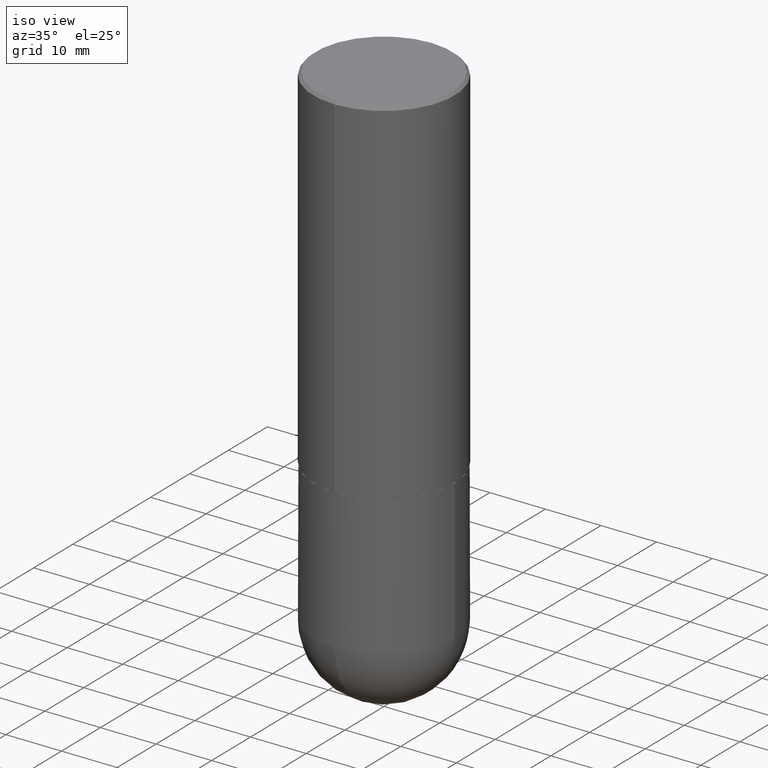
[diagram: clean part render]
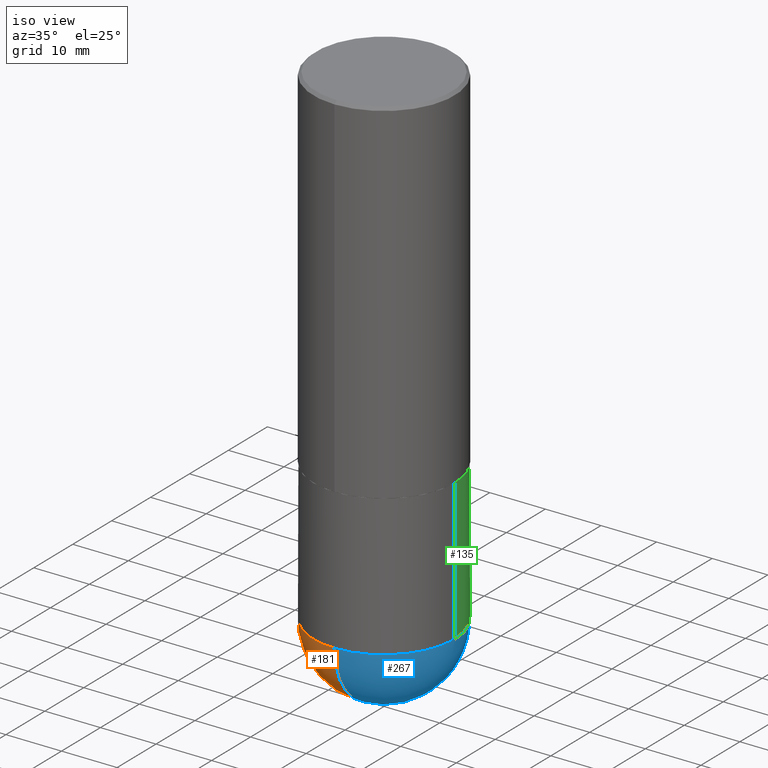
[diagram: same view with three faces highlighted in distinct colors, each labeled with its STEP entity id]
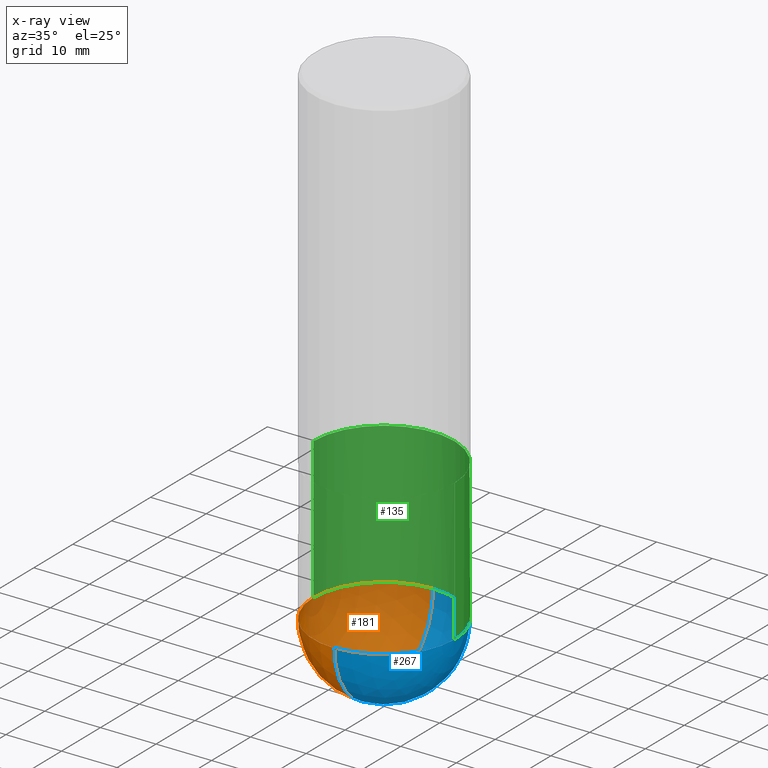
[diagram: x-ray of the same camera — body ghosted, the three highlighted faces saturated]
A machine part, iso view with three faces highlighted in distinct colors.
The next image is the same camera in x-ray (body ghosted, the three faces saturated) — at least one of them is partly hidden behind the body in this view.
Their STEP definitions:

[orange] entity #181 — the highlighted spherical surface has radius 12.7 mm.
#1 = EDGE_CURVE ( 'NONE', #18, #377, #163, .T. ) ;
#5 = DIRECTION ( 'NONE',  ( 1.000000000000000000, -6.982962677686266711E-15, 0.000000000000000000 ) ) ;
#8 = CARTESIAN_POINT ( 'NONE',  ( 8.228021043734090721E-29, -1.269436705409105806E-14, -3.500000000000000000 ) ) ;
#9 = DIRECTION ( 'NONE',  ( -1.000000000000000000, 7.105427357601001070E-15, -4.926315508542082329E-29 ) ) ;
#18 = VERTEX_POINT ( 'NONE', #32 ) ;
#21 = DIRECTION ( 'NONE',  ( 1.000000000000000000, -6.982962677686266711E-15, 0.000000000000000000 ) ) ;
#26 = CARTESIAN_POINT ( 'NONE',  ( 3.491481338843217763E-15, 0.4999999999999876765, -3.500000000000000888 ) ) ;
#32 = CARTESIAN_POINT ( 'NONE',  ( 9.472134604056145415E-29, -1.440949155353394884E-14, -4.000000000000000000 ) ) ;
#51 = DIRECTION ( 'NONE',  ( -2.445468806185136597E-29, 3.491481338843145583E-15, 1.000000000000000000 ) ) ;
#56 = DIRECTION ( 'NONE',  ( 6.982962677686266711E-15, 1.000000000000000000, 0.000000000000000000 ) ) ;
#85 = EDGE_CURVE ( 'NONE', #341, #345, #346, .T. ) ;
#92 = ORIENTED_EDGE ( 'NONE', *, *, #343, .F. ) ;
#93 = ORIENTED_EDGE ( 'NONE', *, *, #1, .T. ) ;
#137 = EDGE_LOOP ( 'NONE', ( #92, #93, #277, #144 ) ) ;
#138 = AXIS2_PLACEMENT_3D ( 'NONE', #305, #398, #347 ) ;
#144 = ORIENTED_EDGE ( 'NONE', *, *, #85, .F. ) ;
#147 = CARTESIAN_POINT ( 'NONE',  ( 8.559140821647976968E-29, -1.222018468595100619E-14, -3.499999999999999112 ) ) ;
#163 = CIRCLE ( 'NONE', #333, 0.5000000000000002220 ) ;
#171 = AXIS2_PLACEMENT_3D ( 'NONE', #147, #51, #21 ) ;
#181 = ADVANCED_FACE ( 'NONE', ( #198 ), #270, .T. ) ;
#186 = DIRECTION ( 'NONE',  ( 1.000000000000000000, -6.982962677686265922E-15, 4.883557194083112340E-29 ) ) ;
#189 = CARTESIAN_POINT ( 'NONE',  ( -0.5000000000000000000, -6.921730337728939368E-15, -3.499999999999999112 ) ) ;
#198 = FACE_OUTER_BOUND ( 'NONE', #137, .T. ) ;
#202 = DIRECTION ( 'NONE',  ( -2.445468806185136597E-29, 3.491481338843145583E-15, 1.000000000000000000 ) ) ;
#270 = SPHERICAL_SURFACE ( 'NONE', #138, 0.5000000000000002220 ) ;
#277 = ORIENTED_EDGE ( 'NONE', *, *, #381, .F. ) ;
#280 = AXIS2_PLACEMENT_3D ( 'NONE', #358, #186, #56 ) ;
#305 = CARTESIAN_POINT ( 'NONE',  ( 8.228021043734090721E-29, -1.269436705409105806E-14, -3.500000000000000000 ) ) ;
#321 = CIRCLE ( 'NONE', #366, 0.5000000000000000000 ) ;
#333 = AXIS2_PLACEMENT_3D ( 'NONE', #8, #9, #368 ) ;
#335 = CARTESIAN_POINT ( 'NONE',  ( -3.552713678800417310E-15, -0.5000000000000125455, -3.499999999999997780 ) ) ;
#337 = CARTESIAN_POINT ( 'NONE',  ( 8.559140821647976968E-29, -1.222018468595100619E-14, -3.499999999999999112 ) ) ;
#341 = VERTEX_POINT ( 'NONE', #26 ) ;
#343 = EDGE_CURVE ( 'NONE', #18, #341, #375, .T. ) ;
#345 = VERTEX_POINT ( 'NONE', #189 ) ;
#346 = CIRCLE ( 'NONE', #171, 0.5000000000000000000 ) ;
#347 = DIRECTION ( 'NONE',  ( 6.982962677686265922E-15, 1.000000000000000000, -3.278217592397114284E-15 ) ) ;
#358 = CARTESIAN_POINT ( 'NONE',  ( 8.228021043734090721E-29, -1.269436705409105806E-14, -3.500000000000000000 ) ) ;
#366 = AXIS2_PLACEMENT_3D ( 'NONE', #337, #202, #5 ) ;
#368 = DIRECTION ( 'NONE',  ( -7.105427357601001859E-15, -1.000000000000000000, 0.000000000000000000 ) ) ;
#375 = CIRCLE ( 'NONE', #280, 0.5000000000000002220 ) ;
#377 = VERTEX_POINT ( 'NONE', #335 ) ;
#381 = EDGE_CURVE ( 'NONE', #345, #377, #321, .T. ) ;
#398 = DIRECTION ( 'NONE',  ( -1.000000000000000000, 6.982962677686265922E-15, -4.883557194083113462E-29 ) ) ;

[blue] entity #267 — the highlighted spherical surface has radius 12.7 mm.
#1 = EDGE_CURVE ( 'NONE', #18, #377, #163, .T. ) ;
#8 = CARTESIAN_POINT ( 'NONE',  ( 8.228021043734090721E-29, -1.269436705409105806E-14, -3.500000000000000000 ) ) ;
#9 = DIRECTION ( 'NONE',  ( -1.000000000000000000, 7.105427357601001070E-15, -4.926315508542082329E-29 ) ) ;
#13 = ORIENTED_EDGE ( 'NONE', *, *, #219, .F. ) ;
#18 = VERTEX_POINT ( 'NONE', #32 ) ;
#19 = AXIS2_PLACEMENT_3D ( 'NONE', #325, #287, #385 ) ;
#26 = CARTESIAN_POINT ( 'NONE',  ( 3.491481338843217763E-15, 0.4999999999999876765, -3.500000000000000888 ) ) ;
#30 = CIRCLE ( 'NONE', #66, 0.5000000000000000000 ) ;
#32 = CARTESIAN_POINT ( 'NONE',  ( 9.472134604056145415E-29, -1.440949155353394884E-14, -4.000000000000000000 ) ) ;
#56 = DIRECTION ( 'NONE',  ( 6.982962677686266711E-15, 1.000000000000000000, 0.000000000000000000 ) ) ;
#63 = VERTEX_POINT ( 'NONE', #140 ) ;
#66 = AXIS2_PLACEMENT_3D ( 'NONE', #384, #182, #407 ) ;
#69 = DIRECTION ( 'NONE',  ( 1.000000000000000000, -6.982962677686266711E-15, 0.000000000000000000 ) ) ;
#82 = ORIENTED_EDGE ( 'NONE', *, *, #154, .F. ) ;
#140 = CARTESIAN_POINT ( 'NONE',  ( 0.5000000000000000000, -1.396592535537257286E-14, -3.499999999999999112 ) ) ;
#154 = EDGE_CURVE ( 'NONE', #377, #63, #409, .T. ) ;
#162 = FACE_OUTER_BOUND ( 'NONE', #306, .T. ) ;
#163 = CIRCLE ( 'NONE', #333, 0.5000000000000002220 ) ;
#182 = DIRECTION ( 'NONE',  ( -2.445468806185136597E-29, 3.491481338843145583E-15, 1.000000000000000000 ) ) ;
#186 = DIRECTION ( 'NONE',  ( 1.000000000000000000, -6.982962677686265922E-15, 4.883557194083112340E-29 ) ) ;
#219 = EDGE_CURVE ( 'NONE', #63, #341, #30, .T. ) ;
#229 = DIRECTION ( 'NONE',  ( -2.445468806185136597E-29, 3.491481338843145583E-15, 1.000000000000000000 ) ) ;
#261 = CARTESIAN_POINT ( 'NONE',  ( 8.559140821647976968E-29, -1.222018468595100619E-14, -3.499999999999999112 ) ) ;
#267 = ADVANCED_FACE ( 'NONE', ( #162 ), #380, .T. ) ;
#280 = AXIS2_PLACEMENT_3D ( 'NONE', #358, #186, #56 ) ;
#287 = DIRECTION ( 'NONE',  ( -1.000000000000000000, 6.982962677686265922E-15, -4.883557194083113462E-29 ) ) ;
#306 = EDGE_LOOP ( 'NONE', ( #360, #397, #13, #82 ) ) ;
#325 = CARTESIAN_POINT ( 'NONE',  ( 8.228021043734090721E-29, -1.269436705409105806E-14, -3.500000000000000000 ) ) ;
#326 = AXIS2_PLACEMENT_3D ( 'NONE', #261, #229, #69 ) ;
#333 = AXIS2_PLACEMENT_3D ( 'NONE', #8, #9, #368 ) ;
#335 = CARTESIAN_POINT ( 'NONE',  ( -3.552713678800417310E-15, -0.5000000000000125455, -3.499999999999997780 ) ) ;
#341 = VERTEX_POINT ( 'NONE', #26 ) ;
#343 = EDGE_CURVE ( 'NONE', #18, #341, #375, .T. ) ;
#358 = CARTESIAN_POINT ( 'NONE',  ( 8.228021043734090721E-29, -1.269436705409105806E-14, -3.500000000000000000 ) ) ;
#360 = ORIENTED_EDGE ( 'NONE', *, *, #1, .F. ) ;
#368 = DIRECTION ( 'NONE',  ( -7.105427357601001859E-15, -1.000000000000000000, 0.000000000000000000 ) ) ;
#375 = CIRCLE ( 'NONE', #280, 0.5000000000000002220 ) ;
#377 = VERTEX_POINT ( 'NONE', #335 ) ;
#380 = SPHERICAL_SURFACE ( 'NONE', #19, 0.5000000000000002220 ) ;
#384 = CARTESIAN_POINT ( 'NONE',  ( 8.559140821647976968E-29, -1.222018468595100619E-14, -3.499999999999999112 ) ) ;
#385 = DIRECTION ( 'NONE',  ( 6.982962677686265922E-15, 1.000000000000000000, -3.278217592397114284E-15 ) ) ;
#397 = ORIENTED_EDGE ( 'NONE', *, *, #343, .T. ) ;
#407 = DIRECTION ( 'NONE',  ( 1.000000000000000000, -6.982962677686266711E-15, 0.000000000000000000 ) ) ;
#409 = CIRCLE ( 'NONE', #326, 0.5000000000000000000 ) ;

[green] entity #135 — the highlighted cylindrical surface (partial cylindrical patch) has radius 12.7 mm, axis along (-0, 0, 1).
#7 = VERTEX_POINT ( 'NONE', #109 ) ;
#21 = DIRECTION ( 'NONE',  ( 1.000000000000000000, -6.982962677686266711E-15, 0.000000000000000000 ) ) ;
#26 = CARTESIAN_POINT ( 'NONE',  ( 3.491481338843217763E-15, 0.4999999999999876765, -3.500000000000000888 ) ) ;
#30 = CIRCLE ( 'NONE', #66, 0.5000000000000000000 ) ;
#51 = DIRECTION ( 'NONE',  ( -2.445468806185136597E-29, 3.491481338843145583E-15, 1.000000000000000000 ) ) ;
#59 = AXIS2_PLACEMENT_3D ( 'NONE', #207, #174, #244 ) ;
#63 = VERTEX_POINT ( 'NONE', #140 ) ;
#66 = AXIS2_PLACEMENT_3D ( 'NONE', #384, #182, #407 ) ;
#74 = EDGE_LOOP ( 'NONE', ( #242, #227, #114, #230, #334 ) ) ;
#85 = EDGE_CURVE ( 'NONE', #341, #345, #346, .T. ) ;
#88 = DIRECTION ( 'NONE',  ( -2.445468806185136877E-29, 3.491481338843145188E-15, 1.000000000000000000 ) ) ;
#99 = CYLINDRICAL_SURFACE ( 'NONE', #361, 0.5000000000000000000 ) ;
#102 = EDGE_CURVE ( 'NONE', #123, #7, #292, .T. ) ;
#109 = CARTESIAN_POINT ( 'NONE',  ( -0.5000000000000000000, -6.921730337728935424E-15, -2.500000000000000000 ) ) ;
#114 = ORIENTED_EDGE ( 'NONE', *, *, #102, .F. ) ;
#122 = CARTESIAN_POINT ( 'NONE',  ( 0.5000000000000000000, -3.491481338843133355E-15, 2.438088387897967896E-29 ) ) ;
#123 = VERTEX_POINT ( 'NONE', #248 ) ;
#133 = FACE_OUTER_BOUND ( 'NONE', #74, .T. ) ;
#135 = ADVANCED_FACE ( 'NONE', ( #133 ), #99, .T. ) ;
#136 = DIRECTION ( 'NONE',  ( 1.000000000000000000, -6.982962677686266711E-15, 4.876176775795935793E-29 ) ) ;
#140 = CARTESIAN_POINT ( 'NONE',  ( 0.5000000000000000000, -1.396592535537257286E-14, -3.499999999999999112 ) ) ;
#147 = CARTESIAN_POINT ( 'NONE',  ( 8.559140821647976968E-29, -1.222018468595100619E-14, -3.499999999999999112 ) ) ;
#153 = LINE ( 'NONE', #122, #221 ) ;
#157 = LINE ( 'NONE', #160, #313 ) ;
#160 = CARTESIAN_POINT ( 'NONE',  ( -0.5000000000000000000, 3.552713678800500929E-15, -2.459467545127452891E-29 ) ) ;
#166 = DIRECTION ( 'NONE',  ( -2.445468806185136597E-29, 3.491481338843145583E-15, 1.000000000000000000 ) ) ;
#171 = AXIS2_PLACEMENT_3D ( 'NONE', #147, #51, #21 ) ;
#174 = DIRECTION ( 'NONE',  ( -2.445468806185136597E-29, 3.491481338843145583E-15, 1.000000000000000000 ) ) ;
#182 = DIRECTION ( 'NONE',  ( -2.445468806185136597E-29, 3.491481338843145583E-15, 1.000000000000000000 ) ) ;
#189 = CARTESIAN_POINT ( 'NONE',  ( -0.5000000000000000000, -6.921730337728939368E-15, -3.499999999999999112 ) ) ;
#207 = CARTESIAN_POINT ( 'NONE',  ( 6.113672015462842613E-29, -8.728703347107864943E-15, -2.500000000000000000 ) ) ;
#219 = EDGE_CURVE ( 'NONE', #63, #341, #30, .T. ) ;
#221 = VECTOR ( 'NONE', #251, 39.37007874015748143 ) ;
#224 = EDGE_CURVE ( 'NONE', #63, #123, #153, .T. ) ;
#227 = ORIENTED_EDGE ( 'NONE', *, *, #271, .T. ) ;
#230 = ORIENTED_EDGE ( 'NONE', *, *, #224, .F. ) ;
#242 = ORIENTED_EDGE ( 'NONE', *, *, #85, .T. ) ;
#244 = DIRECTION ( 'NONE',  ( 1.000000000000000000, -6.982962677686269077E-15, 0.000000000000000000 ) ) ;
#248 = CARTESIAN_POINT ( 'NONE',  ( 0.5000000000000000000, -1.222018468595099830E-14, -2.500000000000000000 ) ) ;
#251 = DIRECTION ( 'NONE',  ( -2.445468806185136877E-29, 3.491481338843145188E-15, 1.000000000000000000 ) ) ;
#258 = CARTESIAN_POINT ( 'NONE',  ( 0.000000000000000000, 0.000000000000000000, 0.000000000000000000 ) ) ;
#271 = EDGE_CURVE ( 'NONE', #345, #7, #157, .T. ) ;
#292 = CIRCLE ( 'NONE', #59, 0.5000000000000000000 ) ;
#313 = VECTOR ( 'NONE', #88, 39.37007874015748143 ) ;
#334 = ORIENTED_EDGE ( 'NONE', *, *, #219, .T. ) ;
#341 = VERTEX_POINT ( 'NONE', #26 ) ;
#345 = VERTEX_POINT ( 'NONE', #189 ) ;
#346 = CIRCLE ( 'NONE', #171, 0.5000000000000000000 ) ;
#361 = AXIS2_PLACEMENT_3D ( 'NONE', #258, #166, #136 ) ;
#384 = CARTESIAN_POINT ( 'NONE',  ( 8.559140821647976968E-29, -1.222018468595100619E-14, -3.499999999999999112 ) ) ;
#407 = DIRECTION ( 'NONE',  ( 1.000000000000000000, -6.982962677686266711E-15, 0.000000000000000000 ) ) ;